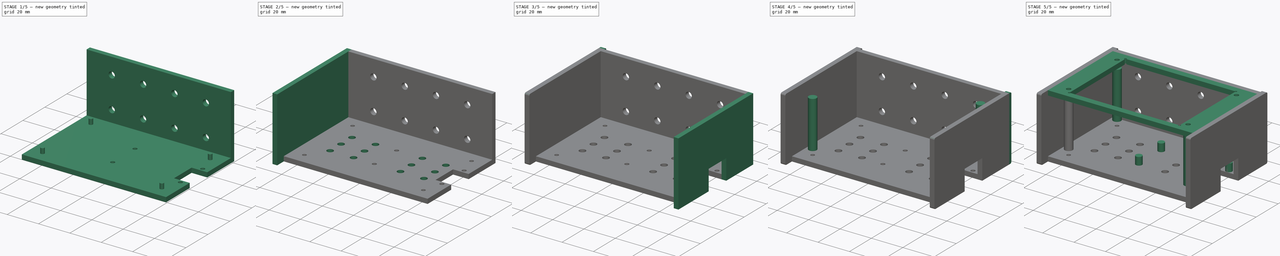
[diagram: build sequence overview — one tinted view per stage of 5, left to right]
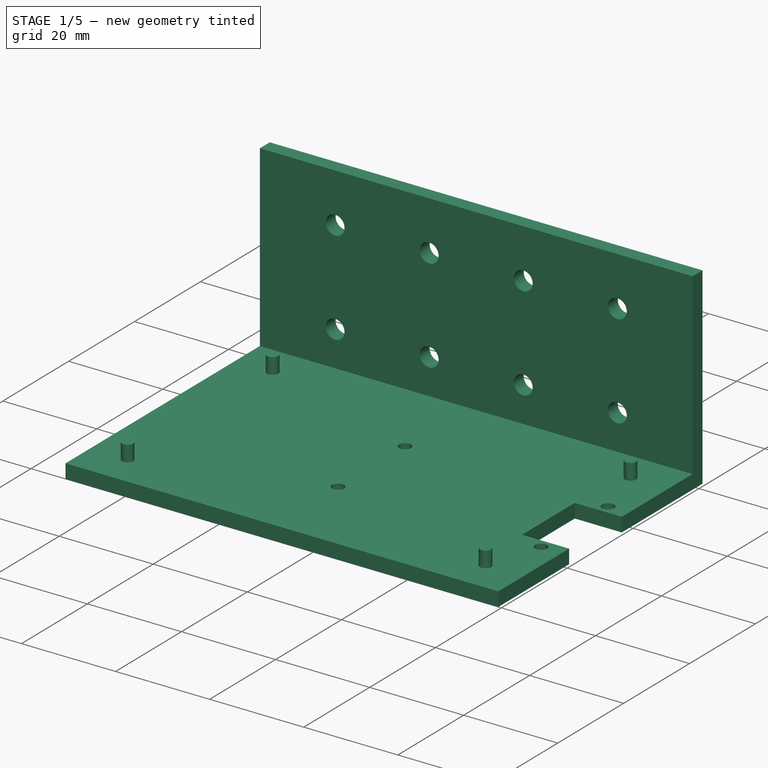
[diagram: stage 1 of 5 — iso view after this stage's code; geometry added in this stage tinted green]
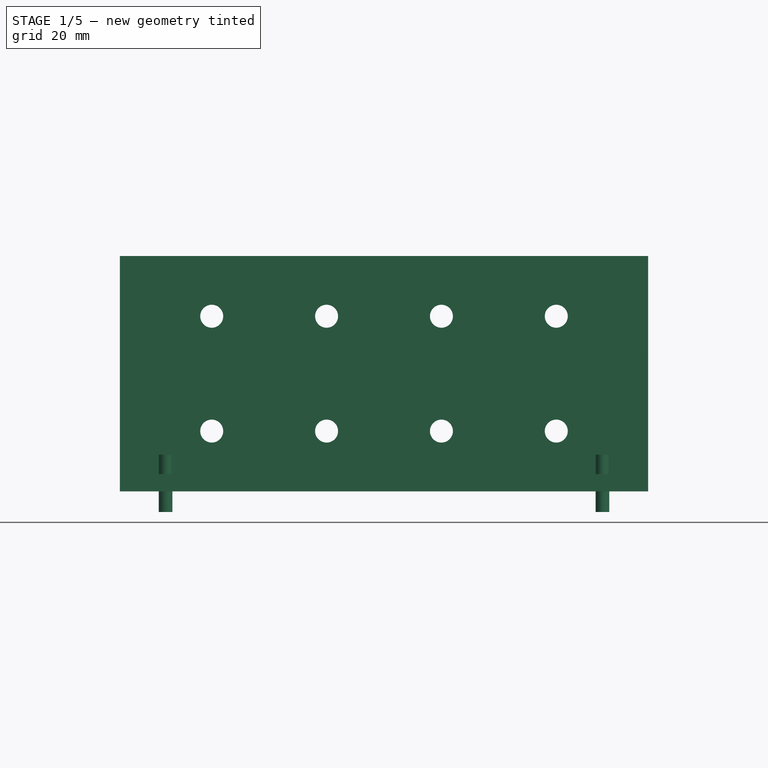
[diagram: stage 1 of 5 — front view after this stage's code; geometry added in this stage tinted green]
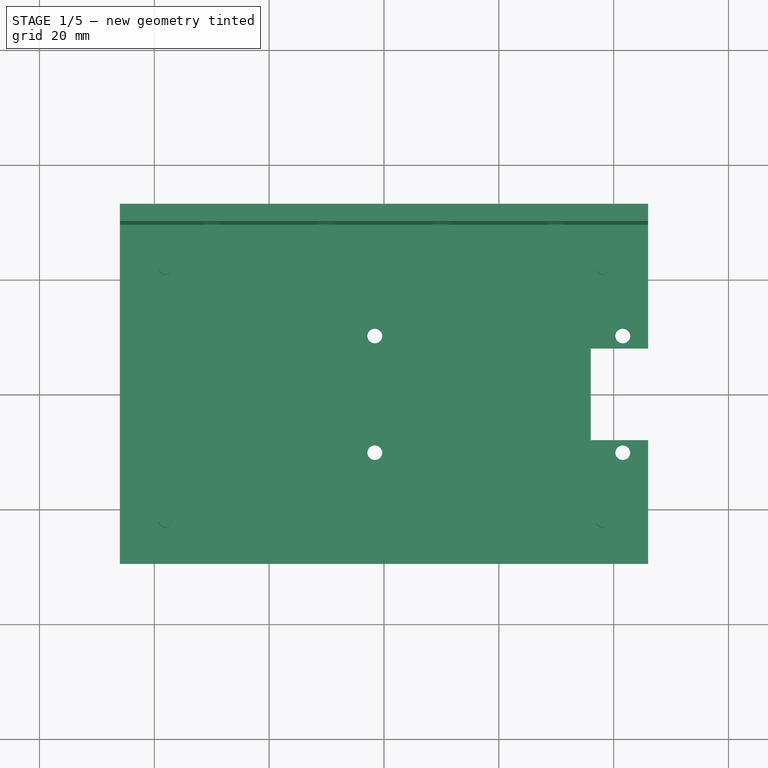
[diagram: stage 1 of 5 — top view after this stage's code; geometry added in this stage tinted green]
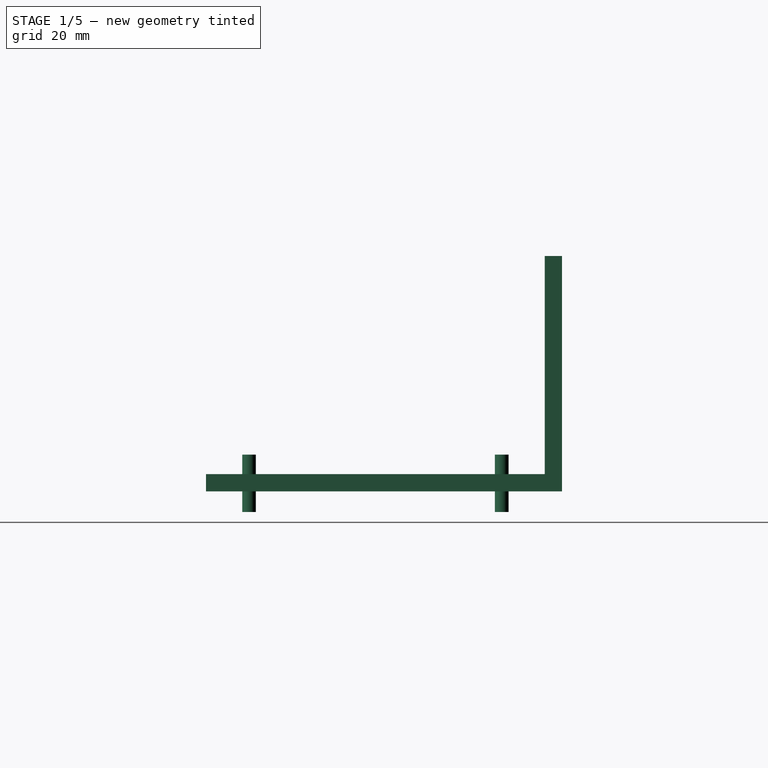
[diagram: stage 1 of 5 — right view after this stage's code; geometry added in this stage tinted green]
FCSTD DOCUMENT  (FreeCAD 0.16R6706 (Git))
Label: temperature
License: All rights reserved
LicenseURL: http://en.wikipedia.org/wiki/All_rights_reserved
objects: Sketcher::SketchObject×13, Part::Feature×12, PartDesign::Pocket×7, PartDesign::Pad×6, PartDesign::Fillet×4, Part::Fuse×3, App::DocumentObjectGroup×2, Part::Cut×1, PartDesign::Mirrored×1, PartDesign::LinearPattern×1
note: 61 computed .brp shape members not serialized (recipe doc carries the construction recipe); baked Part::Feature solids carry a one-line shape summary decoded from their .brp

FEATURE [Sketcher::SketchObject] Sketch004
  Placement = pos=(0,0,-20.5) rot=(1,0,0;3.14159rad)
  Support = -> bottom_panel [Face5]
  sketch-geometry (8):
    g0: LineSegment [constr] StartX=-1.6 StartY=10.16 StartZ=0 EndX=41.58 EndY=10.16 EndZ=0
    g1: LineSegment [constr] StartX=41.58 StartY=10.16 StartZ=0 EndX=41.58 EndY=-10.16 EndZ=0
    g2: LineSegment [constr] StartX=41.58 StartY=-10.16 StartZ=0 EndX=-1.6 EndY=-10.16 EndZ=0
    g3: LineSegment [constr] StartX=-1.6 StartY=-10.16 StartZ=0 EndX=-1.6 EndY=10.16 EndZ=0
    g4: Circle CenterX=-1.6 CenterY=10.16 CenterZ=0 NormalX=0 NormalY=0 NormalZ=1 Radius=1.295
    g5: Circle CenterX=41.58 CenterY=10.16 CenterZ=0 NormalX=0 NormalY=0 NormalZ=1 Radius=1.295
    g6: Circle CenterX=41.58 CenterY=-10.16 CenterZ=0 NormalX=0 NormalY=0 NormalZ=1 Radius=1.295
    g7: Circle CenterX=-1.6 CenterY=-10.16 CenterZ=0 NormalX=0 NormalY=0 NormalZ=1 Radius=1.295
  constraints (20):
    c: Coincident(g0,g1)
    c: Coincident(g1,g2)
    c: Coincident(g2,g3)
    c: Coincident(g3,g0)
    c: Horizontal(g0)
    c: Horizontal(g2)
    c: Vertical(g1)
    c: Vertical(g3)
    c: Symmetric(g2,g0,g-1)
    c: DistanceY(g3,g3) = 20.32
    c: DistanceX(g0,g0) = 43.18
    c: DistanceX(g0,g-1) = 1.6
    c: Coincident(g4,g0)
    c: Coincident(g5,g0)
    c: Coincident(g6,g1)
    c: Coincident(g7,g2)
    c: Radius(g6) = 1.295
    c: Equal(g6,g7)
    c: Equal(g6,g4)
    c: Equal(g6,g5)
FEATURE [PartDesign::Pocket] Pocket002  label="new_bottom"
  Length = 5
  Sketch = -> Sketch004
  Type = 0
FEATURE [App::DocumentObjectGroup] Groupe  label="acc"
  Group = -> [Pad003001,Pad004001,Pad002001,Pad004002,Pad004006,Fusion002]
FEATURE [Sketcher::SketchObject] Sketch005
  Placement = pos=(0,0,-20.5) rot=(1,0,0;3.14159rad)
  Support = -> Pocket002 [Face4]
  sketch-geometry (4):
    g0: LineSegment StartX=36 StartY=8 StartZ=0 EndX=50 EndY=8 EndZ=0
    g1: LineSegment StartX=50 StartY=8 StartZ=0 EndX=50 EndY=-8 EndZ=0
    g2: LineSegment StartX=50 StartY=-8 StartZ=0 EndX=36 EndY=-8 EndZ=0
    g3: LineSegment StartX=36 StartY=-8 StartZ=0 EndX=36 EndY=8 EndZ=0
  constraints (12):
    c: Coincident(g0,g1)
    c: Coincident(g1,g2)
    c: Coincident(g2,g3)
    c: Coincident(g3,g0)
    c: Horizontal(g0)
    c: Horizontal(g2)
    c: Vertical(g1)
    c: Vertical(g3)
    c: Symmetric(g0,g1,g-1)
    c: DistanceX(g2,g2) = 14
    c: DistanceY(g3,g3) = 16
    c: DistanceX(g-1,g2) = 36
FEATURE [PartDesign::Pocket] Pocket003  label="new_bottom2"
  Length = 5
  Sketch = -> Sketch005
  Type = 0
FEATURE [Sketcher::SketchObject] Sketch011
  Placement = pos=(0,0,-14.1) rot=(-1,0,0;3.14159rad)
  sketch-geometry (8):
    g0: LineSegment [constr] StartX=-38.04 StartY=22 StartZ=0 EndX=38.04 EndY=22 EndZ=0
    g1: LineSegment [constr] StartX=38.04 StartY=22 StartZ=0 EndX=38.04 EndY=-22 EndZ=0
    g2: LineSegment [constr] StartX=38.04 StartY=-22 StartZ=0 EndX=-38.04 EndY=-22 EndZ=0
    g3: LineSegment [constr] StartX=-38.04 StartY=-22 StartZ=0 EndX=-38.04 EndY=22 EndZ=0
    g4: Circle CenterX=-38.04 CenterY=22 CenterZ=0 NormalX=0 NormalY=0 NormalZ=1 Radius=1.195
    g5: Circle CenterX=38.04 CenterY=22 CenterZ=0 NormalX=0 NormalY=0 NormalZ=1 Radius=1.195
    g6: Circle CenterX=-38.04 CenterY=-22 CenterZ=0 NormalX=0 NormalY=0 NormalZ=1 Radius=1.195
    g7: Circle CenterX=38.04 CenterY=-22 CenterZ=0 NormalX=0 NormalY=0 NormalZ=1 Radius=1.195
  constraints (20):
    c: Coincident(g0,g1)
    c: Coincident(g1,g2)
    c: Coincident(g2,g3)
    c: Coincident(g3,g0)
    c: Horizontal(g0)
    c: Horizontal(g2)
    c: Vertical(g1)
    c: Vertical(g3)
    c: DistanceX(g2,g2) = 76.08
    c: DistanceY(g1,g1) = 44
    c: DistanceY(g-1,g0) = 22
    c: DistanceX(g-1,g0) = 38.04
    c: Coincident(g0,g4)
    c: Coincident(g0,g5)
    c: Coincident(g2,g6)
    c: Coincident(g1,g7)
    c: Radius(g6) = 1.195
    c: Equal(g6,g7)
    c: Equal(g6,g5)
    c: Equal(g6,g4)
FEATURE [PartDesign::Pad] Pad004010
  Length = 10
  Length2 = 100
  Placement = pos=(0,0,-14.1) rot=(-1,0,0;3.14159rad)
  Sketch = -> Sketch011
  Type = 0
FEATURE [Sketcher::SketchObject] Sketch013
  Placement = pos=(0,32.5,0) rot=(0,0.707107,0.707107;3.14159rad)
  Support = -> face_panel [Face6]
  sketch-geometry (2):
    g0: Circle CenterX=-30 CenterY=10 CenterZ=0 NormalX=0 NormalY=0 NormalZ=1 Radius=2
    g1: Circle CenterX=-30 CenterY=-10 CenterZ=0 NormalX=0 NormalY=0 NormalZ=1 Radius=2
  constraints (5):
    c: Symmetric(g1,g0,g-1)
    c: DistanceX(g0,g-1) = 30
    c: DistanceY(g-1,g0) = 10
    c: Radius(g1) = 2
    c: Equal(g1,g0)
FEATURE [PartDesign::Pocket] Pocket006
  Length = 5
  Sketch = -> Sketch013
  Type = 0
FEATURE [App::DocumentObjectGroup] Groupe001  label="poubellle"
  Group = -> [top_panel,Pocket,bottom_panel,Pocket002,left_panel,Pocket004,Pad,Pad004007,Pad004008,Pad004009,Fillet,Fillet001,right_panel,Pocket005,Cut,Pocket006,face_panel]
FEATURE [PartDesign::LinearPattern] LinearPattern  label="new_face"
  Direction = -> Sketch013 [H_Axis]
  Length = 60
  Occurrences = 4
  Originals = -> [Pocket006]
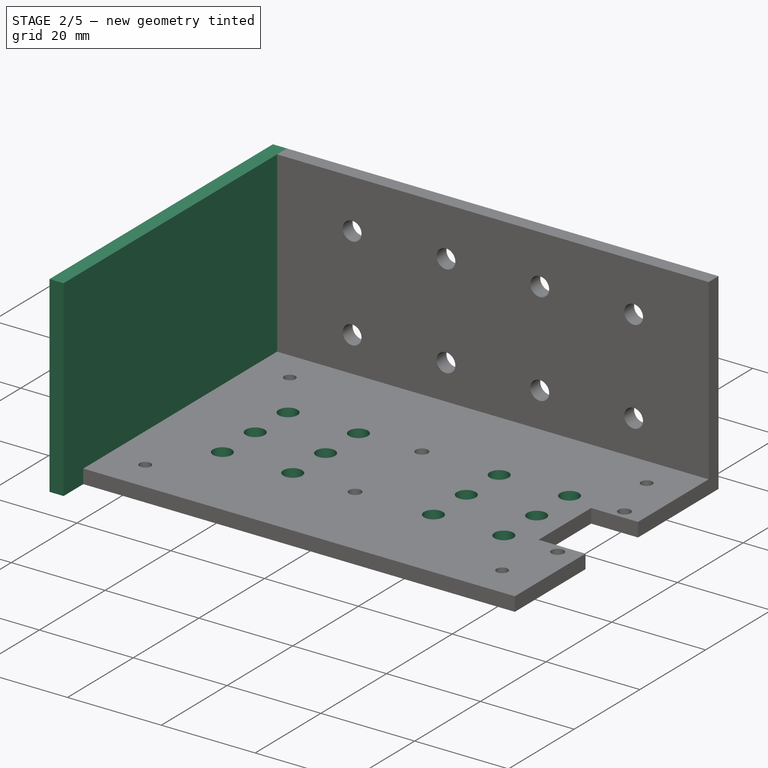
[diagram: stage 2 of 5 — iso view after this stage's code; geometry added in this stage tinted green]
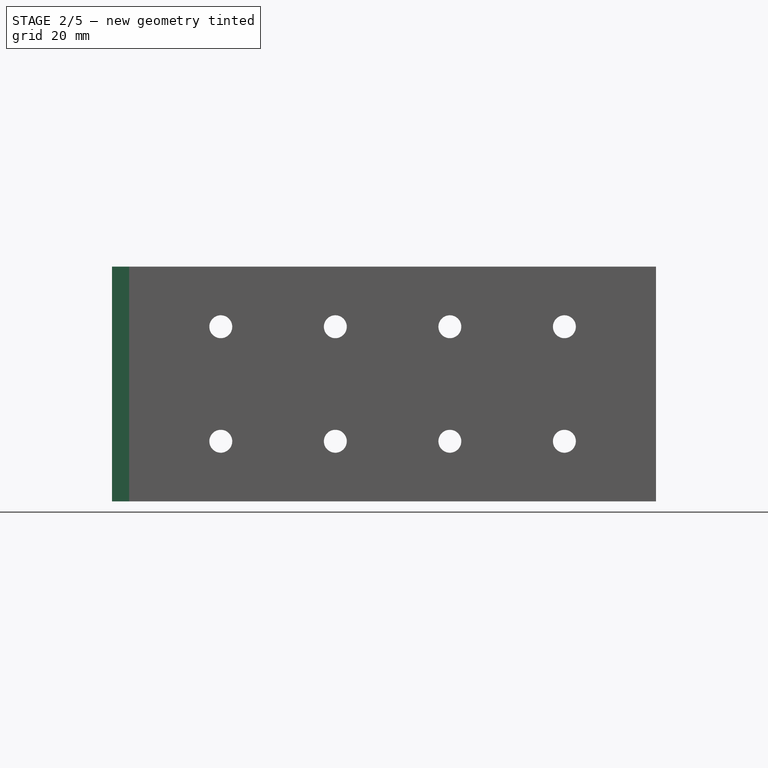
[diagram: stage 2 of 5 — front view after this stage's code; geometry added in this stage tinted green]
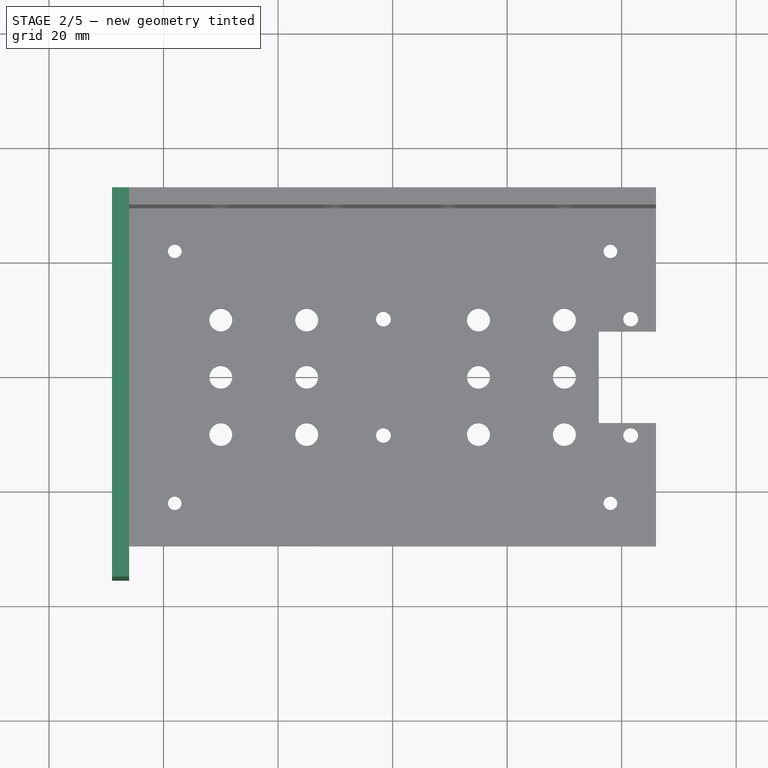
[diagram: stage 2 of 5 — top view after this stage's code; geometry added in this stage tinted green]
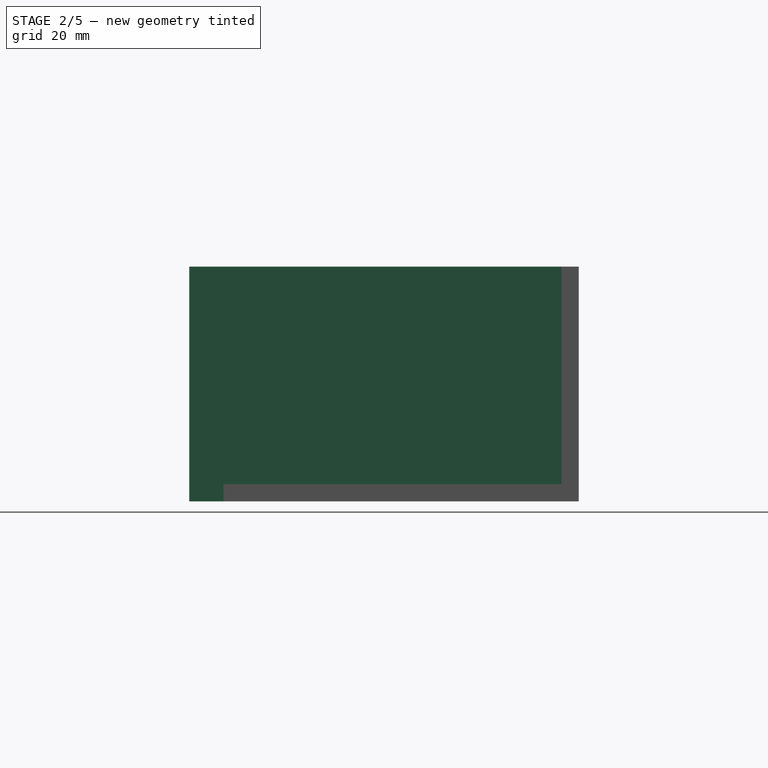
[diagram: stage 2 of 5 — right view after this stage's code; geometry added in this stage tinted green]
FEATURE [Sketcher::SketchObject] Sketch008
  ExternalGeometry = -> [right_panel]
  Placement = pos=(-95,-32.5,0) rot=(1,0,0;1.5708rad)
  Support = -> right_panel [Face3]
  sketch-geometry (4):
    g0: LineSegment StartX=46 StartY=20.5 StartZ=0 EndX=49 EndY=20.5 EndZ=0
    g1: LineSegment StartX=49 StartY=20.5 StartZ=0 EndX=49 EndY=-20.5 EndZ=0
    g2: LineSegment StartX=49 StartY=-20.5 StartZ=0 EndX=46 EndY=-20.5 EndZ=0
    g3: LineSegment StartX=46 StartY=-20.5 StartZ=0 EndX=46 EndY=20.5 EndZ=0
  constraints (10):
    c: Coincident(g0,g1)
    c: Coincident(g1,g2)
    c: Coincident(g2,g3)
    c: Coincident(g3,g0)
    c: Horizontal(g0)
    c: Horizontal(g2)
    c: Vertical(g1)
    c: Vertical(g3)
    c: Coincident(g1,g-4)
    c: Coincident(g0,g-3)
FEATURE [PartDesign::Pad] Pad004007
  Length = 3
  Length2 = 100
  Placement = pos=(-95,0,0) rot=(0,0,1;0rad)
  Sketch = -> Sketch008
  Type = 0
FEATURE [Part::Cut] Cut  label="newbotomm"
  Base = -> Pocket003
  Tool = -> Pad004010
FEATURE [Sketcher::SketchObject] Sketch012
  Placement = pos=(0,0,-20.5) rot=(1,0,0;3.14159rad)
  Support = -> Cut [Face4]
  sketch-geometry (10):
    g0: LineSegment [constr] StartX=-30 StartY=10 StartZ=0 EndX=-15 EndY=10 EndZ=0
    g1: LineSegment [constr] StartX=-15 StartY=10 StartZ=0 EndX=-15 EndY=-10 EndZ=0
    g2: LineSegment [constr] StartX=-15 StartY=-10 StartZ=0 EndX=-30 EndY=-10 EndZ=0
    g3: LineSegment [constr] StartX=-30 StartY=-10 StartZ=0 EndX=-30 EndY=10 EndZ=0
    g4: Circle CenterX=-30 CenterY=10 CenterZ=0 NormalX=0 NormalY=0 NormalZ=1 Radius=2
    g5: Circle CenterX=-15 CenterY=10 CenterZ=0 NormalX=0 NormalY=0 NormalZ=1 Radius=2
    g6: Circle CenterX=-15 CenterY=-10 CenterZ=0 NormalX=0 NormalY=0 NormalZ=1 Radius=2
    g7: Circle CenterX=-30 CenterY=-10 CenterZ=0 NormalX=0 NormalY=0 NormalZ=1 Radius=2
    g8: Circle CenterX=-15 CenterY=0 CenterZ=0 NormalX=0 NormalY=0 NormalZ=1 Radius=2
    g9: Circle CenterX=-30 CenterY=0 CenterZ=0 NormalX=0 NormalY=0 NormalZ=1 Radius=2
  constraints (26):
    c: Coincident(g0,g1)
    c: Coincident(g1,g2)
    c: Coincident(g2,g3)
    c: Coincident(g3,g0)
    c: Horizontal(g0)
    c: Horizontal(g2)
    c: Vertical(g1)
    c: Vertical(g3)
    c: Symmetric(g1,g0,g-1)
    c: DistanceY(g1,g1) = 20
    c: DistanceX(g0,g-1) = 15
    c: DistanceX(g0,g0) = 15
    c: Coincident(g0,g4)
    c: Coincident(g0,g5)
    c: Coincident(g1,g6)
    c: Coincident(g2,g7)
    c: PointOnObject(g9,g-1)
    c: PointOnObject(g8,g-1)
    c: PointOnObject(g8,g1)
    c: PointOnObject(g9,g3)
    c: Radius(g7) = 2
    c: Equal(g7,g9)
    c: Equal(g7,g6)
    c: Equal(g7,g8)
    c: Equal(g7,g5)
    c: Equal(g7,g4)
FEATURE [PartDesign::Pocket] Pocket005
  Length = 5
  Sketch = -> Sketch012
  Type = 0
FEATURE [PartDesign::Mirrored] Mirrored  label="new_bottom003"
  MirrorPlane = -> Sketch012 [V_Axis]
  Originals = -> [Pocket005]
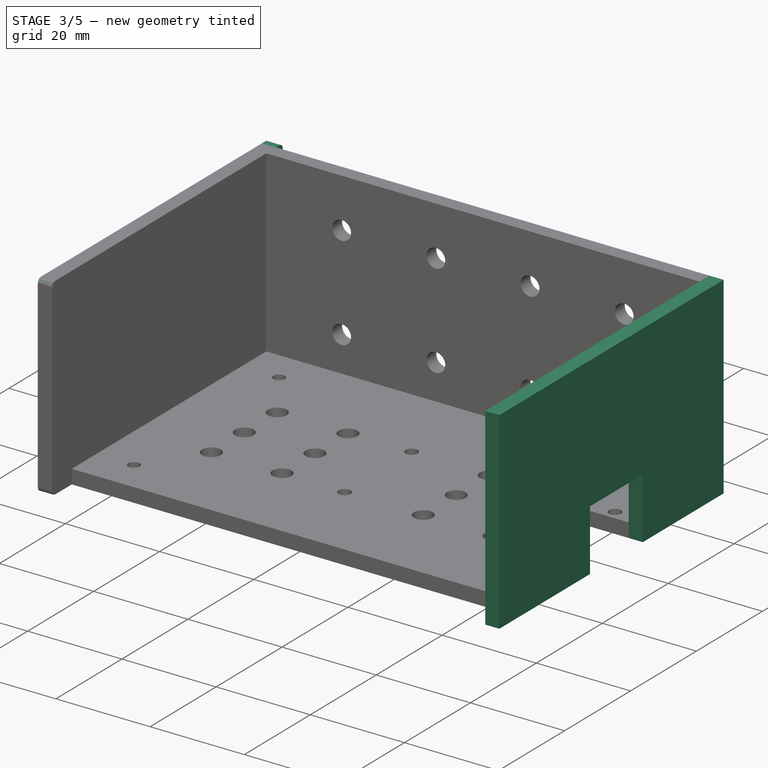
[diagram: stage 3 of 5 — iso view after this stage's code; geometry added in this stage tinted green]
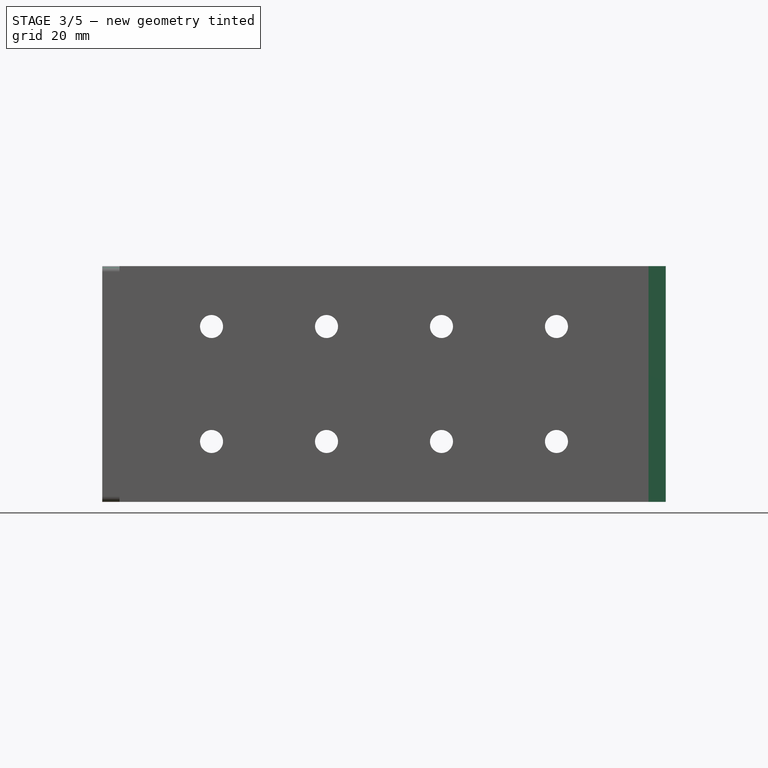
[diagram: stage 3 of 5 — front view after this stage's code; geometry added in this stage tinted green]
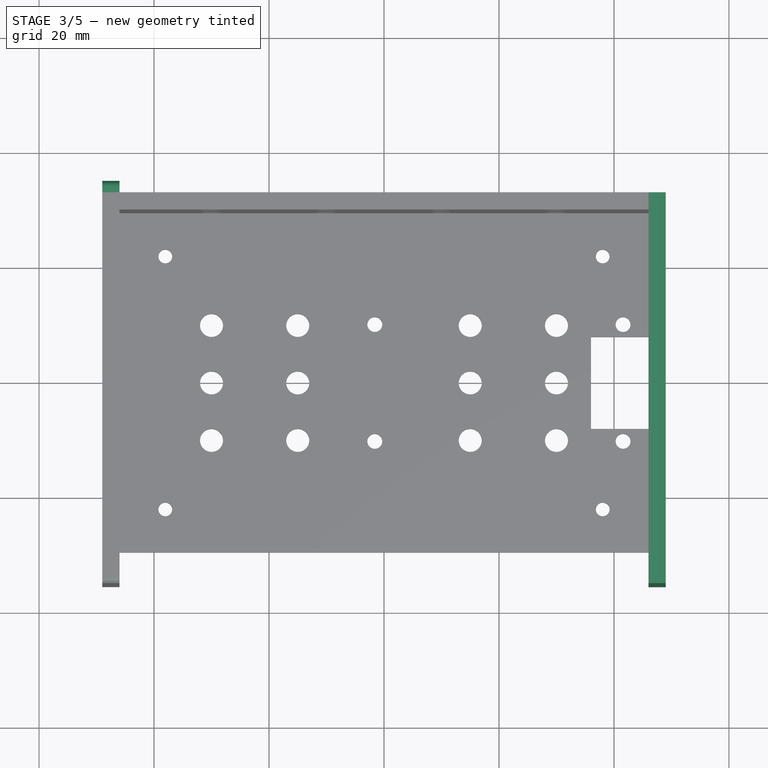
[diagram: stage 3 of 5 — top view after this stage's code; geometry added in this stage tinted green]
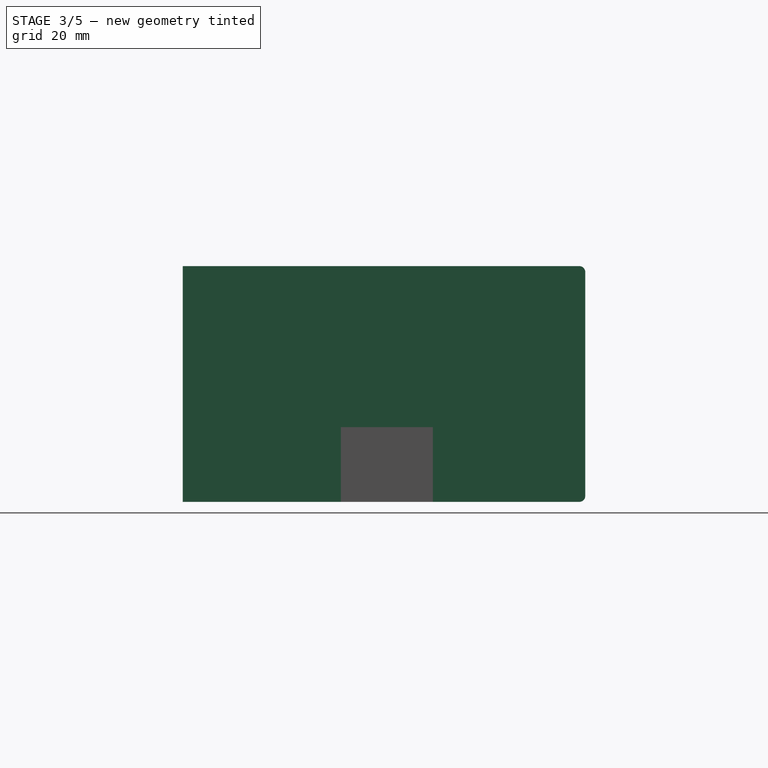
[diagram: stage 3 of 5 — right view after this stage's code; geometry added in this stage tinted green]
FEATURE [Sketcher::SketchObject] Sketch006
  ExternalGeometry = -> [left_panel]
  Placement = pos=(49,0,0) rot=(0.57735,0.57735,0.57735;2.0944rad)
  Support = -> left_panel [Face6]
  sketch-geometry (4):
    g0: LineSegment StartX=-8 StartY=-20.5 StartZ=0 EndX=8 EndY=-20.5 EndZ=0
    g1: LineSegment StartX=8 StartY=-20.5 StartZ=0 EndX=8 EndY=-7.5 EndZ=0
    g2: LineSegment StartX=8 StartY=-7.5 StartZ=0 EndX=-8 EndY=-7.5 EndZ=0
    g3: LineSegment StartX=-8 StartY=-7.5 StartZ=0 EndX=-8 EndY=-20.5 EndZ=0
  constraints (12):
    c: Coincident(g0,g1)
    c: Coincident(g1,g2)
    c: Coincident(g2,g3)
    c: Coincident(g3,g0)
    c: Horizontal(g0)
    c: Horizontal(g2)
    c: Vertical(g1)
    c: Vertical(g3)
    c: PointOnObject(g0,g-3)
    c: Symmetric(g1,g2,g-2)
    c: DistanceY(g1,g1) = 13
    c: DistanceX(g2,g2) = 16
FEATURE [PartDesign::Pocket] Pocket004  label="new_left_panel"
  Length = 5
  Sketch = -> Sketch006
  Type = 0
FEATURE [Sketcher::SketchObject] Sketch007
  ExternalGeometry = -> [Pocket004]
  Placement = pos=(0,-32.5,0) rot=(1,0,0;1.5708rad)
  Support = -> Pocket004 [Face9]
  sketch-geometry (4):
    g0: LineSegment StartX=46 StartY=20.5 StartZ=0 EndX=49 EndY=20.5 EndZ=0
    g1: LineSegment StartX=49 StartY=20.5 StartZ=0 EndX=49 EndY=-20.5 EndZ=0
    g2: LineSegment StartX=49 StartY=-20.5 StartZ=0 EndX=46 EndY=-20.5 EndZ=0
    g3: LineSegment StartX=46 StartY=-20.5 StartZ=0 EndX=46 EndY=20.5 EndZ=0
  constraints (10):
    c: Coincident(g0,g1)
    c: Coincident(g1,g2)
    c: Coincident(g2,g3)
    c: Coincident(g3,g0)
    c: Horizontal(g0)
    c: Horizontal(g2)
    c: Vertical(g1)
    c: Vertical(g3)
    c: Coincident(g0,g-4)
    c: Coincident(g1,g-5)
FEATURE [PartDesign::Pad] Pad
  Length = 3
  Length2 = 100
  Sketch = -> Sketch007
  Type = 0
FEATURE [Sketcher::SketchObject] Sketch009
  ExternalGeometry = -> [Pad004007]
  Placement = pos=(-95,32.5,0) rot=(0,0.707107,0.707107;3.14159rad)
  Support = -> Pad004007 [Face1]
  sketch-geometry (4):
    g0: LineSegment StartX=-49 StartY=20.5 StartZ=0 EndX=-46 EndY=20.5 EndZ=0
    g1: LineSegment StartX=-46 StartY=20.5 StartZ=0 EndX=-46 EndY=-20.5 EndZ=0
    g2: LineSegment StartX=-46 StartY=-20.5 StartZ=0 EndX=-49 EndY=-20.5 EndZ=0
    g3: LineSegment StartX=-49 StartY=-20.5 StartZ=0 EndX=-49 EndY=20.5 EndZ=0
  constraints (10):
    c: Coincident(g0,g1)
    c: Coincident(g1,g2)
    c: Coincident(g2,g3)
    c: Coincident(g3,g0)
    c: Horizontal(g0)
    c: Horizontal(g2)
    c: Vertical(g1)
    c: Vertical(g3)
    c: Coincident(g1,g-3)
    c: Coincident(g0,g-4)
FEATURE [PartDesign::Pad] Pad004008
  Length = 2
  Length2 = 100
  Placement = pos=(-95,0,0) rot=(0,0,1;0rad)
  Sketch = -> Sketch009
  Type = 0
FEATURE [PartDesign::Fillet] Fillet
  Base = -> Pad004008 [Edge21,Edge28]
  Placement = pos=(-95,0,0) rot=(0,0,1;0rad)
  Radius = 1
FEATURE [PartDesign::Fillet] Fillet003  label="new_right_panel"
  Base = -> Fillet [Edge25,Edge34]
  Placement = pos=(-95,0,0) rot=(0,0,1;0rad)
  Radius = 1
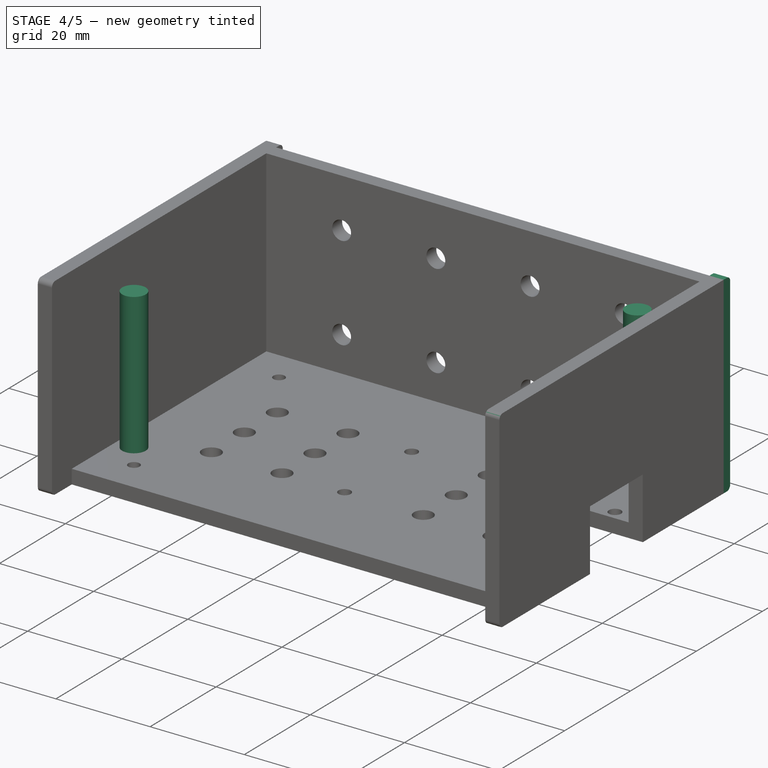
[diagram: stage 4 of 5 — iso view after this stage's code; geometry added in this stage tinted green]
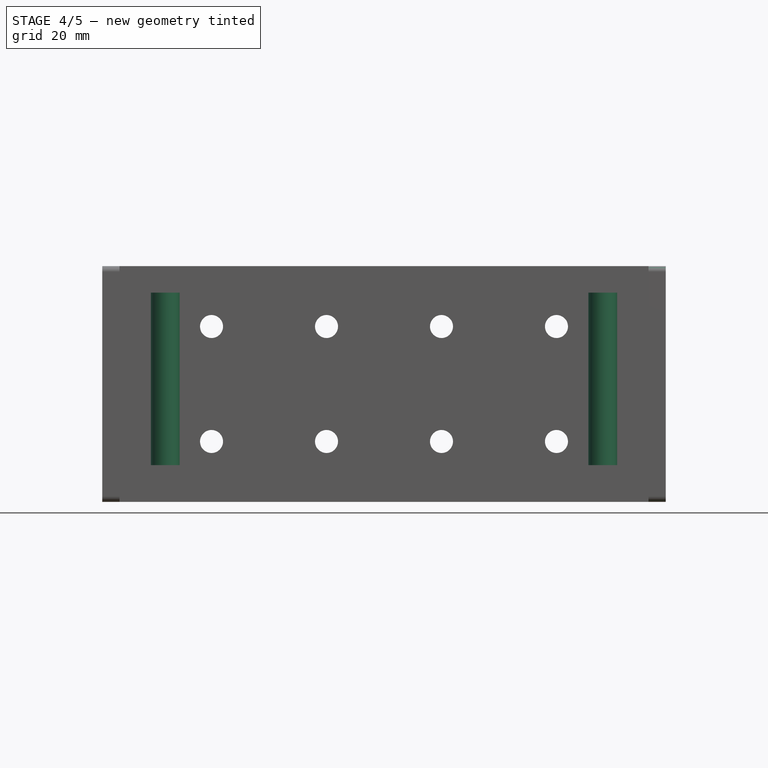
[diagram: stage 4 of 5 — front view after this stage's code; geometry added in this stage tinted green]
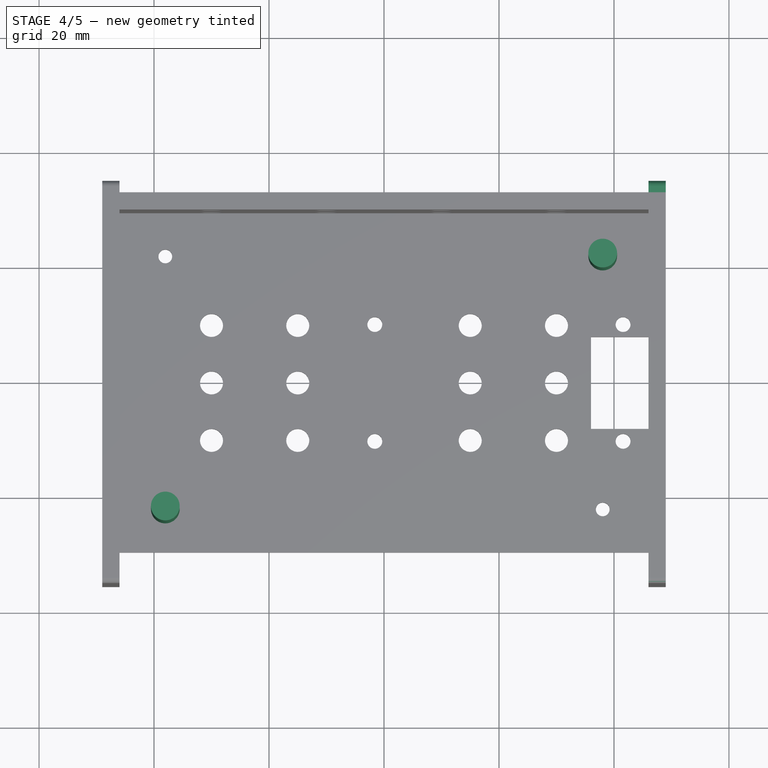
[diagram: stage 4 of 5 — top view after this stage's code; geometry added in this stage tinted green]
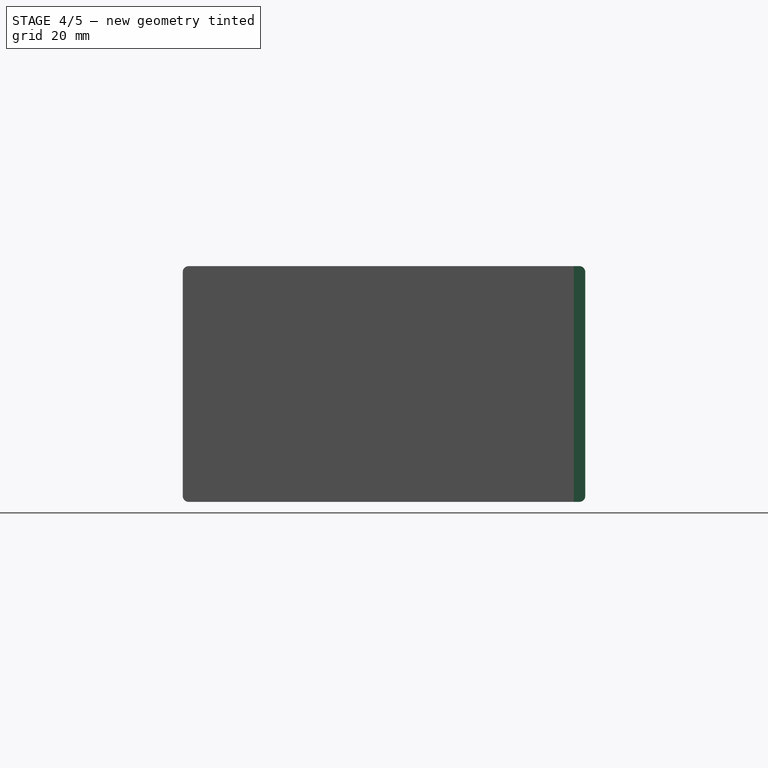
[diagram: stage 4 of 5 — right view after this stage's code; geometry added in this stage tinted green]
FEATURE [Part::Fuse] Fusion001
FEATURE [Sketcher::SketchObject] Sketch010
  ExternalGeometry = -> [Pad]
  Placement = pos=(0,32.5,0) rot=(0,0.707107,0.707107;3.14159rad)
  Support = -> Pad [Face5]
  sketch-geometry (4):
    g0: LineSegment StartX=-49 StartY=-20.5 StartZ=0 EndX=-46 EndY=-20.5 EndZ=0
    g1: LineSegment StartX=-46 StartY=-20.5 StartZ=0 EndX=-46 EndY=20.5 EndZ=0
    g2: LineSegment StartX=-46 StartY=20.5 StartZ=0 EndX=-49 EndY=20.5 EndZ=0
    g3: LineSegment StartX=-49 StartY=20.5 StartZ=0 EndX=-49 EndY=-20.5 EndZ=0
  constraints (10):
    c: Coincident(g0,g1)
    c: Coincident(g1,g2)
    c: Coincident(g2,g3)
    c: Coincident(g3,g0)
    c: Horizontal(g0)
    c: Horizontal(g2)
    c: Vertical(g1)
    c: Vertical(g3)
    c: Coincident(g1,g-4)
    c: Coincident(g0,g-3)
FEATURE [PartDesign::Pad] Pad004009
  Length = 2
  Length2 = 100
  Sketch = -> Sketch010
  Type = 0
FEATURE [PartDesign::Fillet] Fillet001
  Base = -> Pad004009 [Edge38,Edge37]
  Radius = 1
FEATURE [PartDesign::Fillet] Fillet002  label="new_left_panel001"
  Base = -> Fillet001 [Edge43,Edge44]
  Radius = 1
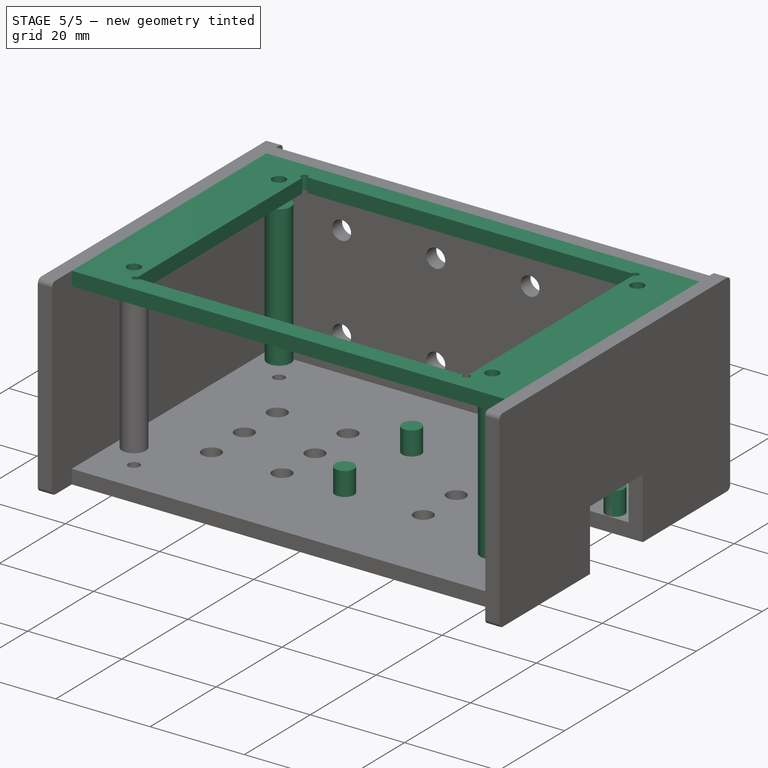
[diagram: stage 5 of 5 — iso view after this stage's code; geometry added in this stage tinted green]
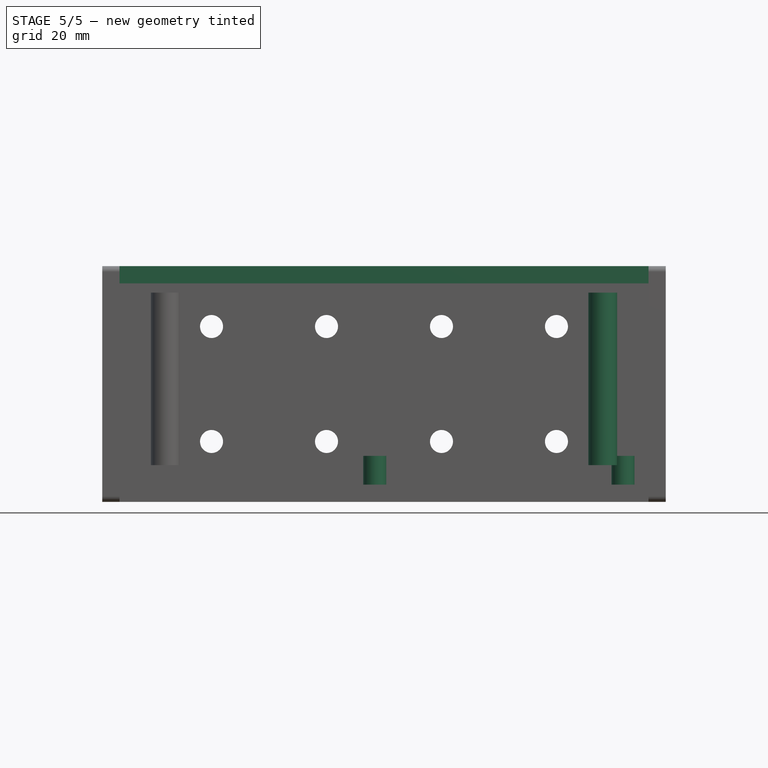
[diagram: stage 5 of 5 — front view after this stage's code; geometry added in this stage tinted green]
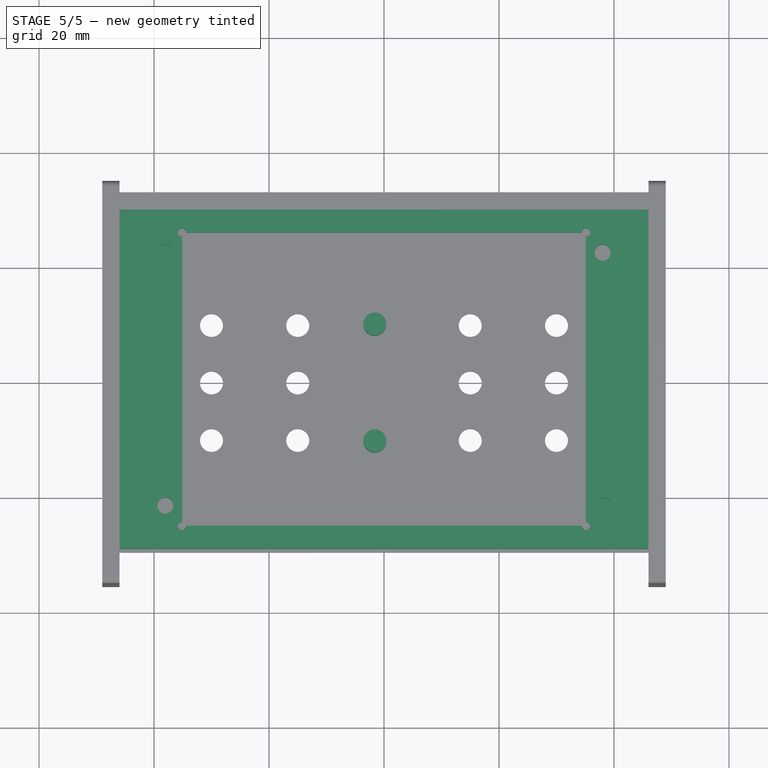
[diagram: stage 5 of 5 — top view after this stage's code; geometry added in this stage tinted green]
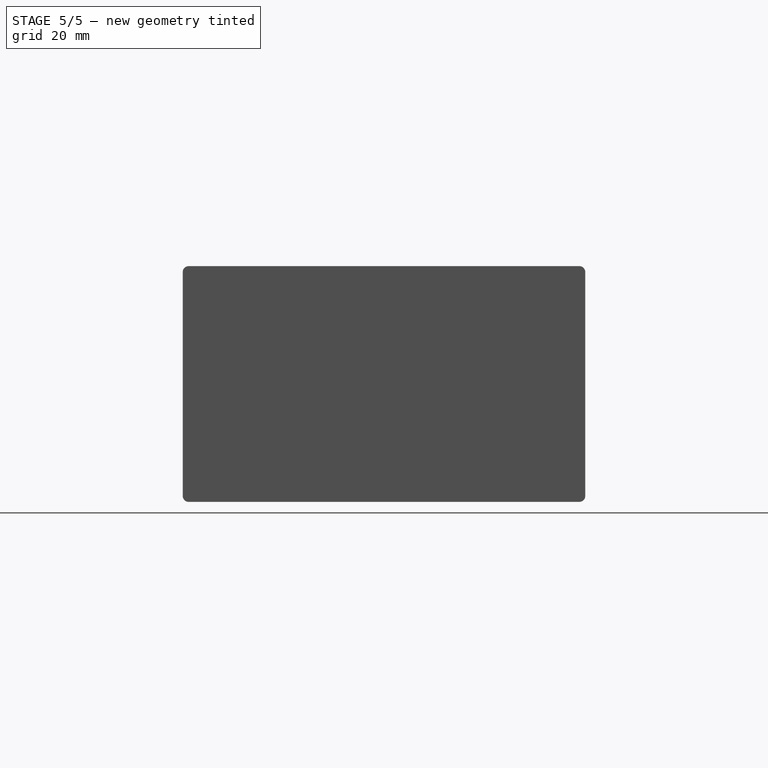
[diagram: stage 5 of 5 — right view after this stage's code; geometry added in this stage tinted green]
FEATURE [Part::Feature] Pad003001  label="dht22_module001"
  Placement = pos=(-20,7,-15) rot=(0,0,1;0rad)
  shape: bbox 23 x 43.73 x 8.6 mm, 22 faces (baked)
FEATURE [Part::Feature] Pad004001  label="ds3232"
  Placement = pos=(-12,-23,0) rot=(-0.57735,0.57735,-0.57735;4.18879rad)
  shape: bbox 42.73 x 12.6 x 22.5 mm, 26 faces (baked)
FEATURE [Part::Feature] Pad002001  label="tft_2_8p001"
  Placement = pos=(1.96,0,15.9) rot=(0,0,1;3.14159rad)
  shape: bbox 86 x 50 x 14.1 mm, 26 faces (baked)
FEATURE [Part::Feature] Pad004002  label="nodemcu001"
  Placement = pos=(20,0,-10.9) rot=(-0.707107,0.707107,0;3.14159rad)
  shape: bbox 48.26 x 25.4 x 14 mm, 150 faces (baked)
FEATURE [Part::Feature] face_panel
  shape: bbox 92 x 3 x 41 mm, 6 faces (baked)
FEATURE [Part::Feature] behind_panel
  Placement = pos=(0,-62,0) rot=(0,0,1;0rad)
  shape: bbox 92 x 3 x 41 mm, 6 faces (baked)
FEATURE [Part::Feature] left_panel
  shape: bbox 3 x 65 x 41 mm, 6 faces (baked)
FEATURE [Part::Feature] right_panel
  Placement = pos=(-95,0,0) rot=(0,0,1;0rad)
  shape: bbox 3 x 65 x 41 mm, 6 faces (baked)
FEATURE [Part::Feature] bottom_panel
  shape: bbox 92 x 59 x 3 mm, 6 faces (baked)
FEATURE [Part::Feature] top_panel
  shape: bbox 92 x 59 x 3 mm, 6 faces (baked)
FEATURE [Sketcher::SketchObject] Sketch
  Placement = pos=(0,0,20.5) rot=(0,0,1;0rad)
  Support = -> top_panel [Face6]
  sketch-geometry (12):
    g0: LineSegment StartX=-35.1 StartY=25.5 StartZ=0 EndX=35.1 EndY=25.5 EndZ=0
    g1: LineSegment StartX=35.1 StartY=25.5 StartZ=0 EndX=35.1 EndY=-25.5 EndZ=0
    g2: LineSegment StartX=35.1 StartY=-25.5 StartZ=0 EndX=-35.1 EndY=-25.5 EndZ=0
    g3: LineSegment StartX=-35.1 StartY=-25.5 StartZ=0 EndX=-35.1 EndY=25.5 EndZ=0
    g4: LineSegment [constr] StartX=-38.04 StartY=22 StartZ=0 EndX=38.04 EndY=22 EndZ=0
    g5: LineSegment [constr] StartX=38.04 StartY=22 StartZ=0 EndX=38.04 EndY=-22 EndZ=0
    g6: LineSegment [constr] StartX=38.04 StartY=-22 StartZ=0 EndX=-38.04 EndY=-22 EndZ=0
    g7: LineSegment [constr] StartX=-38.04 StartY=-22 StartZ=0 EndX=-38.04 EndY=22 EndZ=0
    g8: Circle CenterX=-38.04 CenterY=22 CenterZ=0 NormalX=0 NormalY=0 NormalZ=1 Radius=1.4
    g9: Circle CenterX=-38.04 CenterY=-22 CenterZ=0 NormalX=0 NormalY=0 NormalZ=1 Radius=1.4
    g10: Circle CenterX=38.04 CenterY=-22 CenterZ=0 NormalX=0 NormalY=0 NormalZ=1 Radius=1.4
    g11: Circle CenterX=38.04 CenterY=22 CenterZ=0 NormalX=0 NormalY=0 NormalZ=1 Radius=1.4
  constraints (32):
    c: Coincident(g0,g1)
    c: Coincident(g1,g2)
    c: Coincident(g2,g3)
    c: Coincident(g3,g0)
    c: Horizontal(g0)
    c: Horizontal(g2)
    c: Vertical(g1)
    c: Vertical(g3)
    c: Symmetric(g0,g0,g-2)
    c: Symmetric(g0,g1,g-1)
    c: DistanceY(g1,g1) = 51
    c: DistanceX(g2,g1) = 70.2
    c: Coincident(g4,g5)
    c: Coincident(g5,g6)
    c: Coincident(g6,g7)
    c: Coincident(g7,g4)
    c: Horizontal(g4)
    c: Horizontal(g6)
    c: Vertical(g5)
    c: Vertical(g7)
    c: Symmetric(g5,g4,g-1)
    c: Symmetric(g4,g4,g-2)
    c: DistanceY(g5,g5) = 44
    c: DistanceX(g6,g5) = 76.08
    c: Coincident(g8,g4)
    c: Coincident(g9,g6)
    c: Coincident(g10,g5)
    c: Coincident(g11,g4)
    c: Radius(g11) = 1.4
    c: Equal(g11,g10)
    c: Equal(g11,g9)
    c: Equal(g11,g8)
FEATURE [PartDesign::Pocket] Pocket
  Length = 5
  Sketch = -> Sketch
  Type = 0
FEATURE [Sketcher::SketchObject] Sketch001
  ExternalGeometry = -> [Pocket]
  Placement = pos=(0,0,20.5) rot=(0,0,1;0rad)
  Support = -> Pocket [Face5]
  sketch-geometry (8):
    g0: LineSegment [constr] StartX=-35.15 StartY=25.55 StartZ=0 EndX=35.15 EndY=25.55 EndZ=0
    g1: LineSegment [constr] StartX=35.15 StartY=25.55 StartZ=0 EndX=35.15 EndY=-25.55 EndZ=0
    g2: LineSegment [constr] StartX=35.15 StartY=-25.55 StartZ=0 EndX=-35.15 EndY=-25.55 EndZ=0
    g3: LineSegment [constr] StartX=-35.15 StartY=-25.55 StartZ=0 EndX=-35.15 EndY=25.55 EndZ=0
    g4: Circle CenterX=35.15 CenterY=25.55 CenterZ=0 NormalX=0 NormalY=0 NormalZ=1 Radius=0.7
    g5: Circle CenterX=-35.15 CenterY=25.55 CenterZ=0 NormalX=0 NormalY=0 NormalZ=1 Radius=0.7
    g6: Circle CenterX=-35.15 CenterY=-25.55 CenterZ=0 NormalX=0 NormalY=0 NormalZ=1 Radius=0.7
    g7: Circle CenterX=35.15 CenterY=-25.55 CenterZ=0 NormalX=0 NormalY=0 NormalZ=1 Radius=0.7
  constraints (20):
    c: Coincident(g0,g1)
    c: Coincident(g1,g2)
    c: Coincident(g2,g3)
    c: Coincident(g3,g0)
    c: Horizontal(g0)
    c: Horizontal(g2)
    c: Vertical(g1)
    c: Vertical(g3)
    c: Symmetric(g1,g2,g-2)
    c: Symmetric(g0,g1,g-1)
    c: DistanceY(g-3,g0) = 0.05
    c: DistanceX(g-3,g0) = 0.05
    c: Coincident(g4,g0)
    c: Coincident(g5,g0)
    c: Coincident(g6,g2)
    c: Coincident(g7,g1)
    c: Radius(g7) = 0.7
    c: Equal(g7,g4)
    c: Equal(g7,g5)
    c: Equal(g7,g6)
FEATURE [PartDesign::Pocket] Pocket001  label="new_top"
  Length = 5
  Sketch = -> Sketch001
  Type = 0
FEATURE [Part::Feature] Pad004003  label="spacer001"
  Placement = pos=(76.08,0,15.9) rot=(1,0,0;3.14159rad)
  shape: bbox 5 x 5 x 30 mm, 3 faces (baked)
FEATURE [Part::Feature] Pad004004  label="spacer002"
  Placement = pos=(0,44,15.9) rot=(1,0,0;3.14159rad)
  shape: bbox 5 x 5 x 30 mm, 3 faces (baked)
FEATURE [Sketcher::SketchObject] Sketch003
  Placement = pos=(0,0,-12.5) rot=(1,0,0;3.14159rad)
  sketch-geometry (8):
    g0: LineSegment [constr] StartX=-1.6 StartY=10.16 StartZ=0 EndX=41.58 EndY=10.16 EndZ=0
    g1: LineSegment [constr] StartX=41.58 StartY=10.16 StartZ=0 EndX=41.58 EndY=-10.16 EndZ=0
    g2: LineSegment [constr] StartX=41.58 StartY=-10.16 StartZ=0 EndX=-1.6 EndY=-10.16 EndZ=0
    g3: LineSegment [constr] StartX=-1.6 StartY=-10.16 StartZ=0 EndX=-1.6 EndY=10.16 EndZ=0
    g4: Circle CenterX=-1.6 CenterY=10.16 CenterZ=0 NormalX=0 NormalY=0 NormalZ=1 Radius=2
    g5: Circle CenterX=41.58 CenterY=10.16 CenterZ=0 NormalX=0 NormalY=0 NormalZ=1 Radius=2
    g6: Circle CenterX=41.58 CenterY=-10.16 CenterZ=0 NormalX=0 NormalY=0 NormalZ=1 Radius=2
    g7: Circle CenterX=-1.6 CenterY=-10.16 CenterZ=0 NormalX=0 NormalY=0 NormalZ=1 Radius=2
  constraints (20):
    c: Coincident(g0,g1)
    c: Coincident(g1,g2)
    c: Coincident(g2,g3)
    c: Coincident(g3,g0)
    c: Horizontal(g0)
    c: Horizontal(g2)
    c: Vertical(g1)
    c: Vertical(g3)
    c: Symmetric(g2,g0,g-1)
    c: DistanceY(g3,g3) = 20.32
    c: DistanceX(g0,g0) = 43.18
    c: DistanceX(g0,g-1) = 1.6
    c: Coincident(g4,g0)
    c: Coincident(g5,g0)
    c: Coincident(g6,g1)
    c: Coincident(g7,g2)
    c: Radius(g6) = 2
    c: Equal(g6,g7)
    c: Equal(g6,g4)
    c: Equal(g6,g5)
FEATURE [PartDesign::Pad] Pad004006  label="node_spacers"
  Length = 8
  Length2 = 100
  Placement = pos=(0,0,-12.5) rot=(1,0,0;3.14159rad)
  Sketch = -> Sketch003
  Type = 0
FEATURE [Part::Fuse] Fusion
  Base = -> Pad004003
  Tool = -> Pad004004
FEATURE [Part::Fuse] Fusion002  label="spacers"
  Base = -> Fusion
  Tool = -> Fusion001
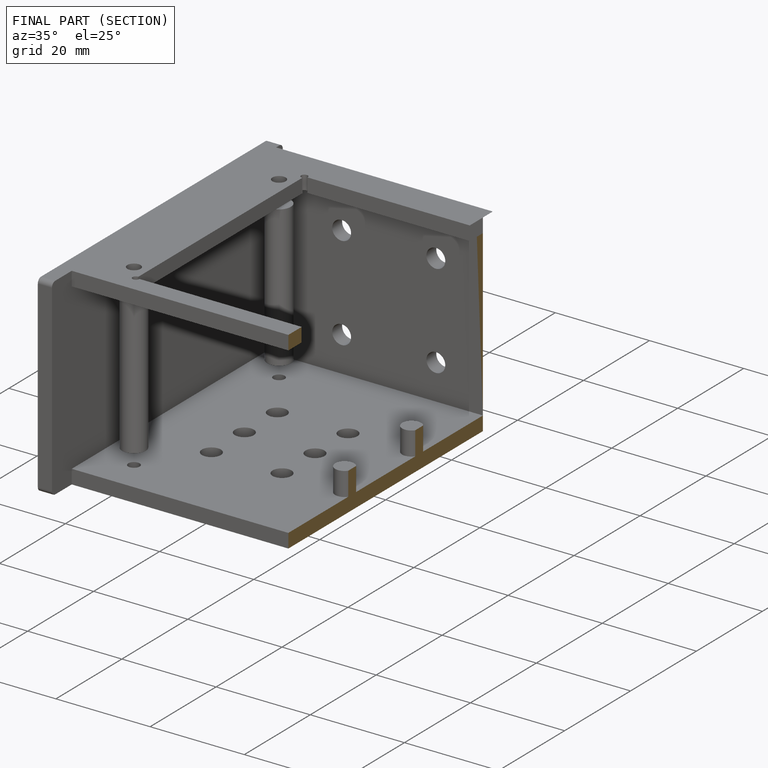
[diagram: finished part — half-section view (interior)]
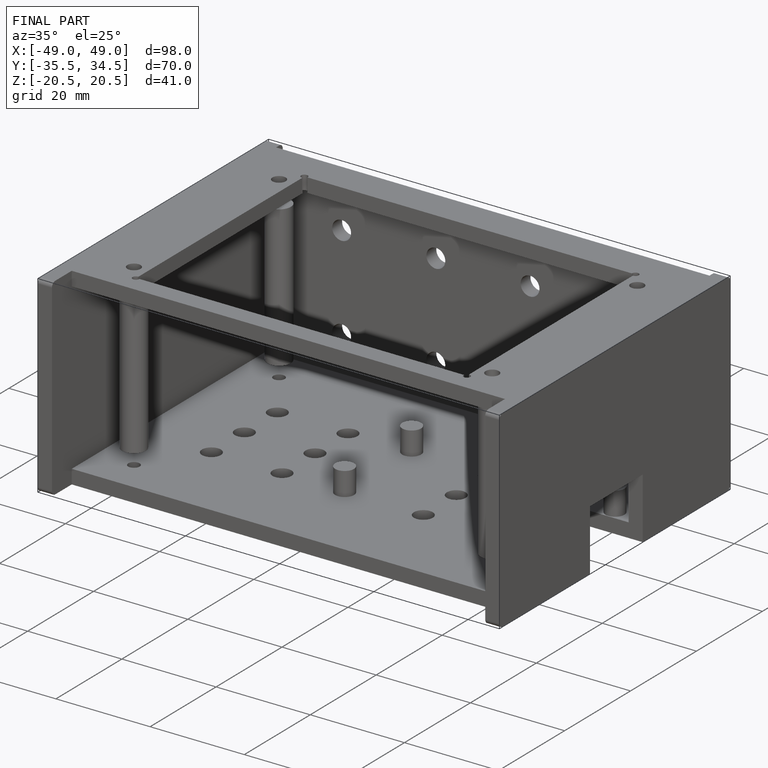
[diagram: finished part — iso view with bounding-box wireframe]
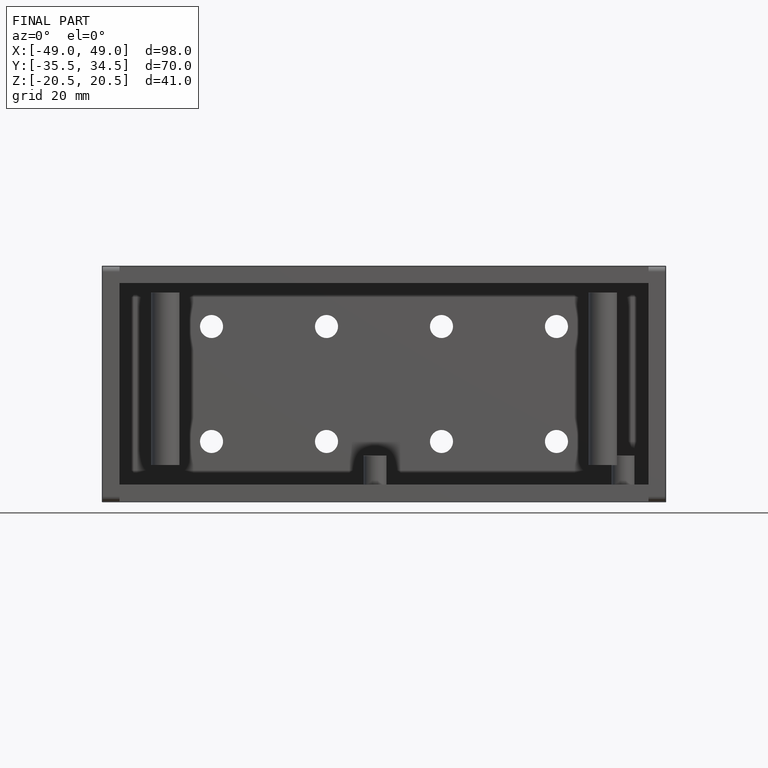
[diagram: finished part — front view with bounding-box wireframe]
